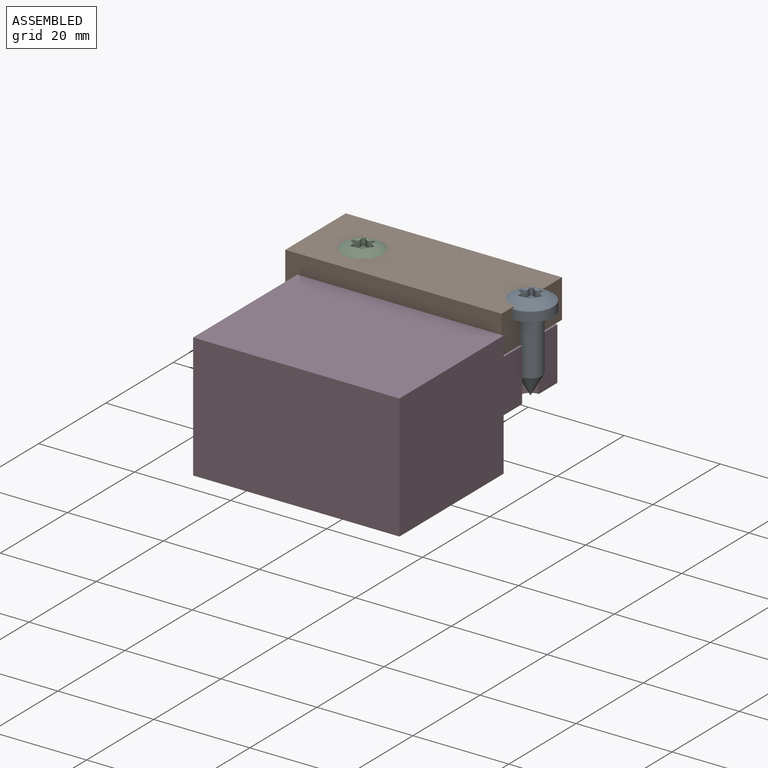
[diagram: assembled view]
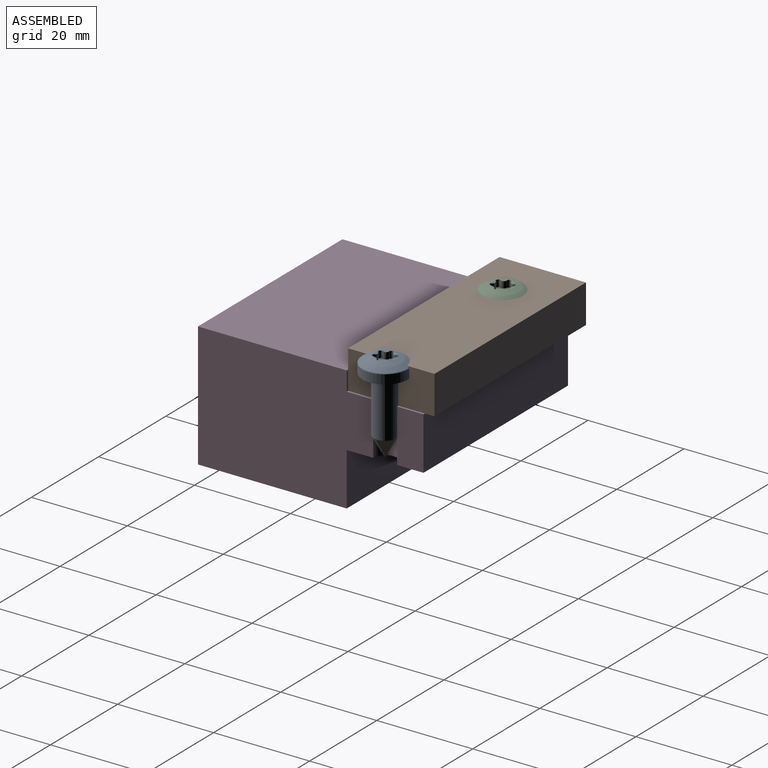
[diagram: assembled view, second angle]
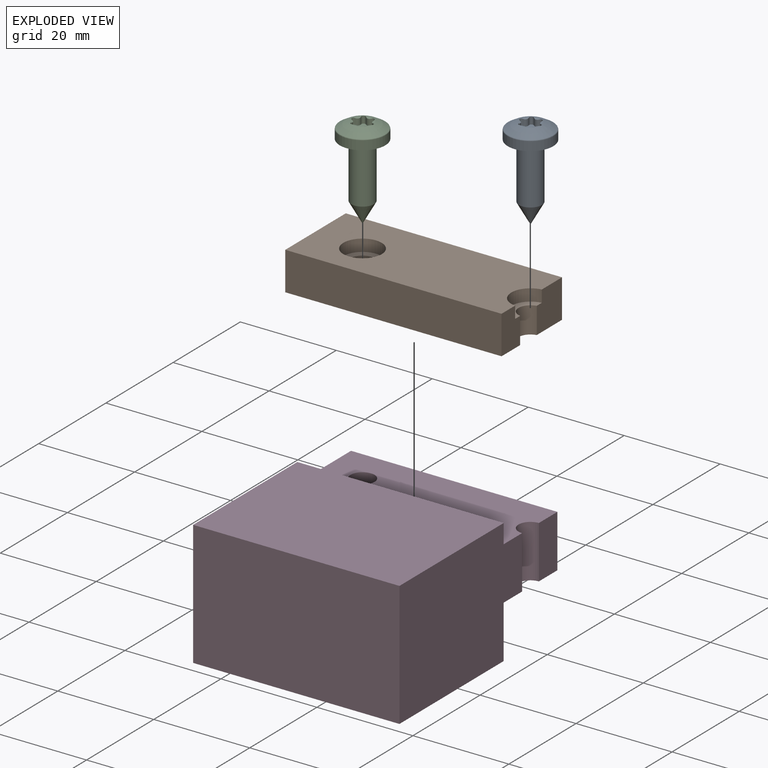
[diagram: exploded view]
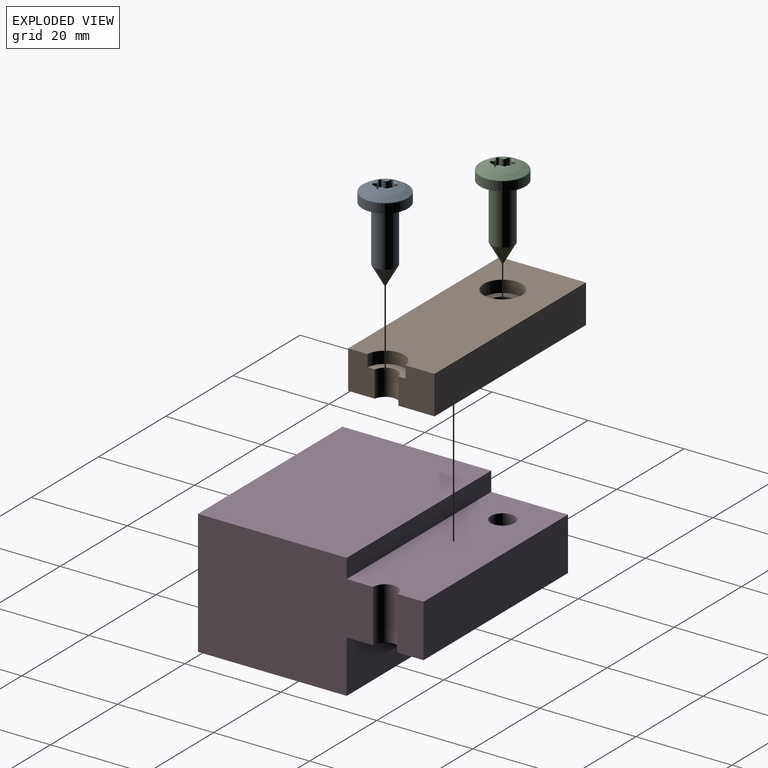
[diagram: exploded view, second angle]
ASSEMBLY  parts=4 mates=3
PART A: 26 faces, bbox 19.3x10.3x10.3 mm
  f0: cylinder r=0.45mm len=1.48mm, axis (1,0,0), area 1.8mm2, adj f5,f6,f7,f13,f14,f19
  f1: cylinder r=0.45mm len=1.48mm, axis (1,0,0), area 1.8mm2, adj f5,f7,f8,f14,f15,f19
  f2: cylinder r=0.45mm len=1.48mm, axis (1,0,0), area 1.8mm2, adj f5,f8,f9,f15,f16,f19
  f3: cylinder r=0.45mm len=1.48mm, axis (1,0,0), area 1.8mm2, adj f5,f9,f10,f16,f17,f19
  f4: cylinder r=0.45mm len=1.48mm, axis (1,0,0), area 1.8mm2, adj f5,f10,f11,f17,f18,f19
  f5: plane 4.52x4.04mm, normal (-1,0,0), area 11.7mm2, adj f0,f1,f2,f3,f4,f6,f7,f8
  f6: cylinder r=0.79mm len=1.43mm, axis (1,0,0), area 1.8mm2, adj f0,f5,f12,f13
  f7: cylinder r=0.79mm len=1.43mm, axis (1,0,0), area 1.8mm2, adj f0,f1,f5,f14
  f8: cylinder r=0.79mm len=1.43mm, axis (1,0,0), area 1.8mm2, adj f1,f2,f5,f15
  f9: cylinder r=0.79mm len=1.43mm, axis (1,0,0), area 1.8mm2, adj f2,f3,f5,f16
  f10: cylinder r=0.79mm len=1.43mm, axis (1,0,0), area 1.8mm2, adj f3,f4,f5,f17
  f11: cylinder r=0.79mm len=1.43mm, axis (1,0,0), area 1.8mm2, adj f4,f5,f12,f18
  f12: cylinder r=0.45mm len=1.48mm, axis (1,0,0), area 1.8mm2, adj f5,f6,f11,f13,f18,f19
  f13: cone r=2.16mm half-angle=75deg, axis (-1,0,0), area 0.6mm2, adj f0,f6,f12,f19
  f14: cone r=2.16mm half-angle=75deg, axis (-1,0,0), area 0.6mm2, adj f0,f1,f7,f19
  f15: cone r=2.16mm half-angle=75deg, axis (-1,0,0), area 0.6mm2, adj f1,f2,f8,f19
  f16: cone r=2.16mm half-angle=75deg, axis (-1,0,0), area 0.6mm2, adj f2,f3,f9,f19
  f17: cone r=2.16mm half-angle=75deg, axis (-1,0,0), area 0.6mm2, adj f3,f4,f10,f19
  f18: cone r=2.16mm half-angle=75deg, axis (-1,0,0), area 0.6mm2, adj f4,f11,f12,f19
  f19: sphere r=8mm, area 60.6mm2, adj f0,f1,f2,f3,f4,f12,f13,f14
  f20: torus R=4.55mm, axis (-1,0,0), area 5.6mm2, adj f19,f21
  f21: cylinder r=4.75mm len=9.5mm, axis (-1,0,0), area 56.3mm2, adj f20,f22
  f22: plane 9.5x9.5mm, normal (1,0,0), area 49.6mm2, adj f21,f24
  f23: cone r=2.4mm half-angle=29.2deg, axis (-1,0,0), area 37.1mm2, adj f25
  f24: torus R=2.6mm, axis (-1,0,0), area 4.9mm2, adj f22,f25
  f25: cylinder r=2.4mm len=11.5mm, axis (-1,0,0), area 173.4mm2, adj f23,f24
PART B: 13 faces, bbox 45.1x18x8 mm
  f0: plane 45.07x8mm, normal (0,-1,0), area 360.6mm2, adj f3,f5,f6,f12
  f1: cylinder r=2.5mm len=5.5mm, axis (0,0,-1), area 86.4mm2, adj f6,f9
  f2: cylinder r=2.5mm len=5.5mm, axis (0,0,-1), area 38.5mm2, adj f6,f7,f11,f12
  f3: plane 18x8mm, normal (-1,0,0), area 144mm2, adj f0,f4,f5,f6
  f4: plane 45.07x8mm, normal (0,1,0), area 360.6mm2, adj f3,f5,f6,f11
  f5: plane 45.07x18mm, normal (0,0,1), area 739.3mm2, adj f0,f3,f4,f8,f10,f11,f12
  f6: plane 45.07x18mm, normal (0,0,-1), area 784mm2, adj f0,f1,f2,f3,f4,f11,f12
  f7: plane 7.95x3.57mm, normal (0,0,1), area 14mm2, adj f2,f8,f11,f12
  f8: cylinder r=4mm len=7.95mm, axis (0,0,1), area 29.3mm2, adj f5,f7,f11,f12
  f9: plane 8x8mm, normal (0,0,1), area 30.6mm2, adj f1,f10
  f10: cylinder r=4mm len=8mm, axis (0,0,1), area 62.8mm2, adj f5,f9
  f11: plane 8x7.54mm, normal (1,0,0), area 56.5mm2, adj f2,f4,f5,f6,f7,f8
  f12: plane 8x5.54mm, normal (1,0,0), area 40.5mm2, adj f0,f2,f5,f6,f7,f8
PART C: same geometry as A
PART D: 13 faces, bbox 43x47x26 mm
  f0: plane 43x31mm, normal (0,0,-1), area 1333mm2, adj f3,f4,f9,f12
  f1: plane 43x11mm, normal (0,1,0), area 473mm2, adj f6,f8,f9,f11
  f2: plane 43x31mm, normal (0,0,1), area 1333mm2, adj f3,f7,f9,f12
  f3: plane 43x26mm, normal (0,-1,0), area 1118mm2, adj f0,f2,f9,f12
  f4: plane 43x11mm, normal (0,1,0), area 473mm2, adj f0,f8,f9,f12
  f5: cylinder r=2.5mm len=11mm, axis (0,0,-1), area 86.4mm2, adj f6,f8,f11,f12
  f6: plane 43x16mm, normal (0,0,1), area 658.5mm2, adj f1,f5,f7,f9,f10,f11,f12
  f7: plane 43x4mm, normal (0,1,0), area 172mm2, adj f2,f6,f9,f12
  f8: plane 43x16mm, normal (0,0,-1), area 658.5mm2, adj f1,f4,f5,f9,f10,f11,f12
  f9: plane 47x26mm, normal (-1,0,0), area 982mm2, adj f0,f1,f2,f3,f4,f6,f7,f8
  f10: cylinder r=2.5mm len=11mm, axis (0,0,-1), area 172.8mm2, adj f6,f8
  f11: plane 11x5.5mm, normal (1,0,0), area 60.5mm2, adj f1,f5,f6,f8
  f12: plane 36.5x26mm, normal (1,0,0), area 866.5mm2, adj f0,f2,f3,f4,f5,f6,f7,f8
PLACE A rot(axis=(0.71,0,-0.71),180deg) t=(-3.17,19.53,37.31)mm
PLACE B t=(-48.67,11.53,31.61)mm
PLACE C rot(axis=(0,1,0),90deg) t=(-38.17,19.53,37.31)mm
PLACE D t=(-46.17,-19.47,9.61)mm
MATE fastened C.f20 <-> B.f1  axis (0,0,1) through (-38.17,19.53,37.11)mm
MATE fastened A.f20 <-> B.f2  axis (0,0,1) through (-3.17,19.53,37.11)mm
MATE fastened B.f2 <-> D.f5  axis (0,0,-1) through (-3.17,19.53,31.61)mm
